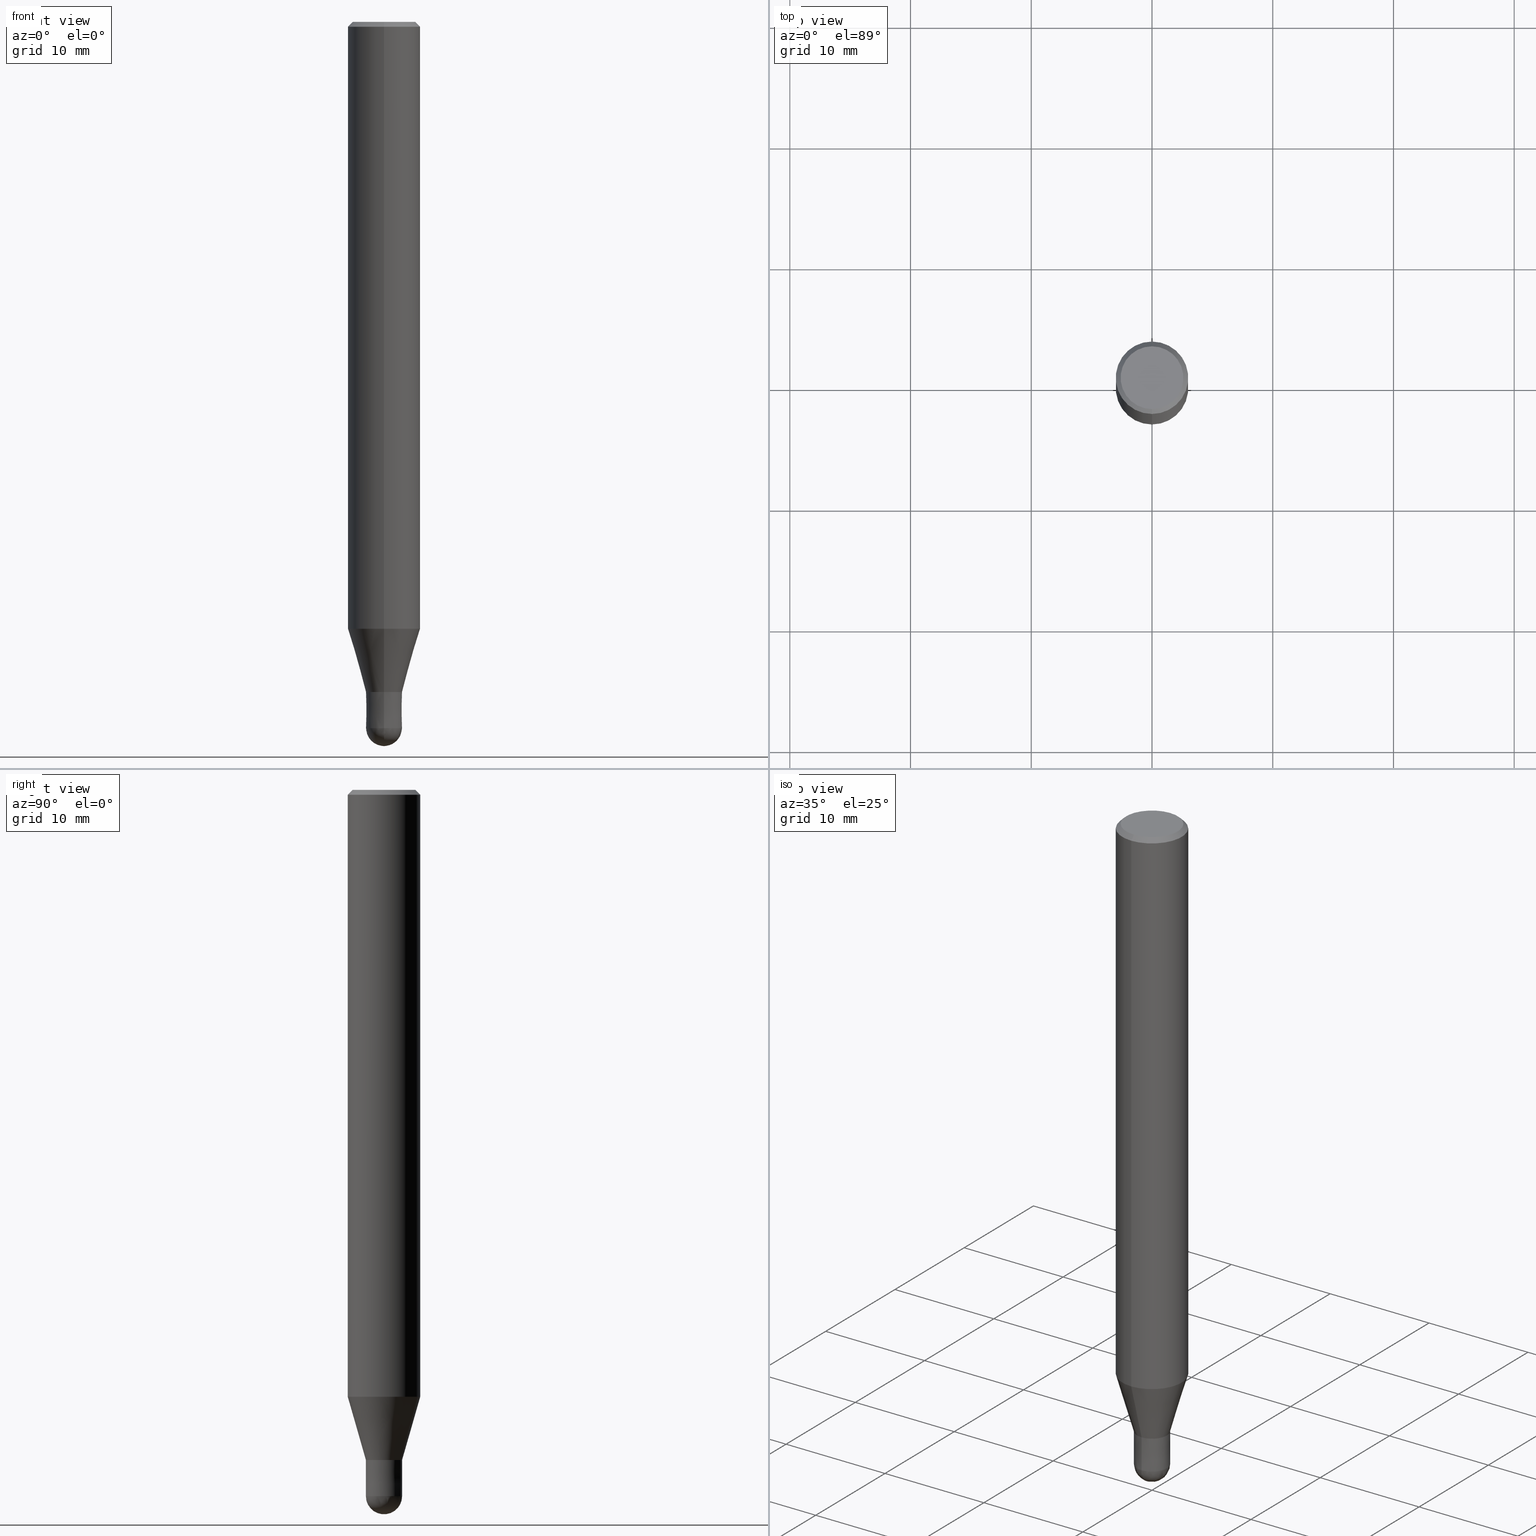
[diagram: canonical four-view strip — front | top / right | iso, engineering-drawing reading convention]
A machine part, canonical four-view strip (front | top / right | iso — engineering-drawing reading convention). The complete STEP part file that produces these views, byte-faithful:
ISO-10303-21;
HEADER;
FILE_DESCRIPTION(('no description'),'unknown implementation level');
FILE_NAME('CFB3030-0450-Huellk.stp','  ',('CIMSOURCE GmbH'),('CADClick - KiM GmbH - www.kimweb.de'),'unknown preprocess','ACIS','unknown authorization');
FILE_SCHEMA(('automotive_design'));
ENDSEC;
DATA;
#1=MECHANICAL_DESIGN_GEOMETRIC_PRESENTATION_REPRESENTATION(' ',(#14,#15,#16,#17,#18,#19,#20,#21,#22,#23,#24,#25,#26,#27,#28,#29,#30,#31,#32,#33,#34,#35,#36,#37,#38,#39,#40,#41,#42,#43,#44,#45,#46,#47,#48,#49,#50,#51,#52,#53,#54,#55,#56,#57,#58,#59,#60,#61,#62,#63,#64,#65,#66),#10);
#2=PRODUCT_DEFINITION_CONTEXT('',#67,'design');
#3=APPLICATION_PROTOCOL_DEFINITION('INTERNATIONAL STANDARD','automotive_design',1994,#67);
#4=PRODUCT_CATEGORY_RELATIONSHIP('NONE','NONE',#68,#69);
#5=SHAPE_DEFINITION_REPRESENTATION(#70,#71);
#6=PRODUCT_DEFINITION_CONTEXT('',#72,'design');
#7=APPLICATION_PROTOCOL_DEFINITION('INTERNATIONAL STANDARD','automotive_design',1994,#72);
#8=PRODUCT_CATEGORY_RELATIONSHIP('NONE','NONE',#73,#74);
#9=SHAPE_DEFINITION_REPRESENTATION(#75,#76);
#10= (GEOMETRIC_REPRESENTATION_CONTEXT(3)GLOBAL_UNCERTAINTY_ASSIGNED_CONTEXT((#79))GLOBAL_UNIT_ASSIGNED_CONTEXT((#81,#82,#83))REPRESENTATION_CONTEXT('NONE','WORKSPACE'));
#14=STYLED_ITEM('',(#85),#86);
#15=STYLED_ITEM('',(#87),#88);
#16=STYLED_ITEM('',(#89),#90);
#17=STYLED_ITEM('',(#91),#92);
#18=STYLED_ITEM('',(#93),#94);
#19=STYLED_ITEM('',(#95),#96);
#20=STYLED_ITEM('',(#97),#98);
#21=STYLED_ITEM('',(#99),#100);
#22=STYLED_ITEM('',(#101),#102);
#23=STYLED_ITEM('',(#103),#104);
#24=STYLED_ITEM('',(#105),#106);
#25=STYLED_ITEM('',(#107),#108);
#26=STYLED_ITEM('',(#109),#110);
#27=STYLED_ITEM('',(#111),#112);
#28=STYLED_ITEM('',(#113),#114);
#29=STYLED_ITEM('',(#115),#116);
#30=STYLED_ITEM('',(#117),#118);
#31=STYLED_ITEM('',(#119),#120);
#32=STYLED_ITEM('',(#121),#122);
#33=STYLED_ITEM('',(#123),#124);
#34=STYLED_ITEM('',(#125),#126);
#35=STYLED_ITEM('',(#127),#128);
#36=STYLED_ITEM('',(#129),#130);
#37=STYLED_ITEM('',(#131),#132);
#38=STYLED_ITEM('',(#133),#134);
#39=STYLED_ITEM('',(#135),#136);
#40=STYLED_ITEM('',(#137),#138);
#41=STYLED_ITEM('',(#139),#140);
#42=STYLED_ITEM('',(#141),#142);
#43=STYLED_ITEM('',(#143),#144);
#44=STYLED_ITEM('',(#145),#146);
#45=STYLED_ITEM('',(#147),#148);
#46=STYLED_ITEM('',(#149),#150);
#47=STYLED_ITEM('',(#151),#152);
#48=STYLED_ITEM('',(#153),#154);
#49=STYLED_ITEM('',(#155),#156);
#50=STYLED_ITEM('',(#157),#158);
#51=STYLED_ITEM('',(#159),#160);
#52=STYLED_ITEM('',(#161),#162);
#53=STYLED_ITEM('',(#163),#164);
#54=STYLED_ITEM('',(#165),#166);
#55=STYLED_ITEM('',(#167),#168);
#56=STYLED_ITEM('',(#169),#170);
#57=STYLED_ITEM('',(#171),#172);
#58=STYLED_ITEM('',(#173),#174);
#59=STYLED_ITEM('',(#175),#176);
#60=STYLED_ITEM('',(#177),#178);
#61=STYLED_ITEM('',(#179),#180);
#62=STYLED_ITEM('',(#181),#182);
#63=STYLED_ITEM('',(#183),#184);
#64=STYLED_ITEM('',(#185),#186);
#65=STYLED_ITEM('',(#187),#188);
#66=STYLED_ITEM('',(#189),#190);
#67=APPLICATION_CONTEXT(' ');
#68=PRODUCT_CATEGORY('part','NONE');
#69=PRODUCT_RELATED_PRODUCT_CATEGORY('detail',' ',(#191));
#70=PRODUCT_DEFINITION_SHAPE('NONE','NONE',#192);
#71=ADVANCED_BREP_SHAPE_REPRESENTATION('1',(#130,#193),#10);
#72=APPLICATION_CONTEXT(' ');
#73=PRODUCT_CATEGORY('part','NONE');
#74=PRODUCT_RELATED_PRODUCT_CATEGORY('detail',' ',(#194));
#75=PRODUCT_DEFINITION_SHAPE('NONE','NONE',#195);
#76=ADVANCED_BREP_SHAPE_REPRESENTATION('2',(#152,#196),#10);
#79=UNCERTAINTY_MEASURE_WITH_UNIT(LENGTH_MEASURE(1.0E-006),#81,'','');
#81= (CONVERSION_BASED_UNIT('MILLIMETRE',#199)LENGTH_UNIT()NAMED_UNIT(#202));
#82= (NAMED_UNIT(#204)PLANE_ANGLE_UNIT()SI_UNIT($,.RADIAN.));
#83= (NAMED_UNIT(#204)SOLID_ANGLE_UNIT()SI_UNIT($,.STERADIAN.));
#85=PRESENTATION_STYLE_ASSIGNMENT((#210));
#86=EDGE_CURVE('',#104,#176,#211,.T.);
#87=PRESENTATION_STYLE_ASSIGNMENT((#212));
#88=EDGE_CURVE('',#158,#184,#213,.T.);
#89=PRESENTATION_STYLE_ASSIGNMENT((#214));
#90=EDGE_CURVE('',#118,#128,#215,.T.);
#91=PRESENTATION_STYLE_ASSIGNMENT((#216));
#92=EDGE_CURVE('',#186,#156,#217,.T.);
#93=PRESENTATION_STYLE_ASSIGNMENT((#218));
#94=EDGE_CURVE('',#184,#118,#219,.T.);
#95=PRESENTATION_STYLE_ASSIGNMENT((#220));
#96=EDGE_CURVE('',#158,#128,#221,.T.);
#97=PRESENTATION_STYLE_ASSIGNMENT((#222));
#98=EDGE_CURVE('',#118,#184,#223,.T.);
#99=PRESENTATION_STYLE_ASSIGNMENT((#224));
#100=EDGE_CURVE('',#174,#146,#225,.T.);
#101=PRESENTATION_STYLE_ASSIGNMENT((#226));
#102=ADVANCED_FACE('',(#227),#228,.T.);
#103=PRESENTATION_STYLE_ASSIGNMENT((#229));
#104=VERTEX_POINT('',#230);
#105=PRESENTATION_STYLE_ASSIGNMENT((#231));
#106=EDGE_CURVE('',#156,#142,#232,.T.);
#107=PRESENTATION_STYLE_ASSIGNMENT((#233));
#108=EDGE_CURVE('',#142,#138,#234,.T.);
#109=PRESENTATION_STYLE_ASSIGNMENT((#235));
#110=EDGE_CURVE('',#176,#146,#236,.T.);
#111=PRESENTATION_STYLE_ASSIGNMENT((#237));
#112=ADVANCED_FACE('',(#238),#239,.T.);
#113=PRESENTATION_STYLE_ASSIGNMENT((#240));
#114=ADVANCED_FACE('',(#241),#242,.T.);
#115=PRESENTATION_STYLE_ASSIGNMENT((#243));
#116=EDGE_CURVE('',#146,#174,#244,.T.);
#117=PRESENTATION_STYLE_ASSIGNMENT((#245));
#118=VERTEX_POINT('',#246);
#119=PRESENTATION_STYLE_ASSIGNMENT((#247));
#120=EDGE_CURVE('',#128,#158,#248,.T.);
#121=PRESENTATION_STYLE_ASSIGNMENT((#249));
#122=ADVANCED_FACE('',(#250),#251,.T.);
#123=PRESENTATION_STYLE_ASSIGNMENT((#252));
#124=EDGE_CURVE('',#142,#156,#253,.T.);
#125=PRESENTATION_STYLE_ASSIGNMENT((#254));
#126=ADVANCED_FACE('',(#255),#256,.T.);
#127=PRESENTATION_STYLE_ASSIGNMENT((#257));
#128=VERTEX_POINT('',#258);
#129=PRESENTATION_STYLE_ASSIGNMENT((#259));
#130=MANIFOLD_SOLID_BREP('1',#260);
#131=PRESENTATION_STYLE_ASSIGNMENT((#261));
#132=EDGE_CURVE('',#138,#170,#262,.T.);
#133=PRESENTATION_STYLE_ASSIGNMENT((#263));
#134=VERTEX_POINT('',#264);
#135=PRESENTATION_STYLE_ASSIGNMENT((#265));
#136=ADVANCED_FACE('',(#266),#267,.T.);
#137=PRESENTATION_STYLE_ASSIGNMENT((#268));
#138=VERTEX_POINT('',#269);
#139=PRESENTATION_STYLE_ASSIGNMENT((#270));
#140=ADVANCED_FACE('',(#271),#272,.T.);
#141=PRESENTATION_STYLE_ASSIGNMENT((#273));
#142=VERTEX_POINT('',#274);
#143=PRESENTATION_STYLE_ASSIGNMENT((#275));
#144=ADVANCED_FACE('',(#276),#277,.T.);
#145=PRESENTATION_STYLE_ASSIGNMENT((#278));
#146=VERTEX_POINT('',#279);
#147=PRESENTATION_STYLE_ASSIGNMENT((#280));
#148=EDGE_CURVE('',#186,#138,#281,.T.);
#149=PRESENTATION_STYLE_ASSIGNMENT((#282));
#150=ADVANCED_FACE('',(#283,#284),#285,.T.);
#151=PRESENTATION_STYLE_ASSIGNMENT((#286));
#152=MANIFOLD_SOLID_BREP('2',#287);
#153=PRESENTATION_STYLE_ASSIGNMENT((#288));
#154=ADVANCED_FACE('',(#289),#290,.T.);
#155=PRESENTATION_STYLE_ASSIGNMENT((#291));
#156=VERTEX_POINT('',#292);
#157=PRESENTATION_STYLE_ASSIGNMENT((#293));
#158=VERTEX_POINT('',#294);
#159=PRESENTATION_STYLE_ASSIGNMENT((#295));
#160=EDGE_CURVE('',#138,#186,#296,.T.);
#161=PRESENTATION_STYLE_ASSIGNMENT((#297));
#162=EDGE_CURVE('',#134,#186,#298,.T.);
#163=PRESENTATION_STYLE_ASSIGNMENT((#299));
#164=ADVANCED_FACE('',(#300),#301,.T.);
#165=PRESENTATION_STYLE_ASSIGNMENT((#302));
#166=EDGE_CURVE('',#176,#104,#303,.T.);
#167=PRESENTATION_STYLE_ASSIGNMENT((#304));
#168=ADVANCED_FACE('',(#305),#306,.T.);
#169=PRESENTATION_STYLE_ASSIGNMENT((#307));
#170=VERTEX_POINT('',#308);
#171=PRESENTATION_STYLE_ASSIGNMENT((#309));
#172=EDGE_CURVE('',#118,#184,#310,.T.);
#173=PRESENTATION_STYLE_ASSIGNMENT((#311));
#174=VERTEX_POINT('',#312);
#175=PRESENTATION_STYLE_ASSIGNMENT((#313));
#176=VERTEX_POINT('',#314);
#177=PRESENTATION_STYLE_ASSIGNMENT((#315));
#178=ADVANCED_FACE('',(#316),#317,.T.);
#179=PRESENTATION_STYLE_ASSIGNMENT((#318));
#180=ADVANCED_FACE('',(#319),#320,.T.);
#181=PRESENTATION_STYLE_ASSIGNMENT((#321));
#182=EDGE_CURVE('',#134,#170,#322,.T.);
#183=PRESENTATION_STYLE_ASSIGNMENT((#323));
#184=VERTEX_POINT('',#324);
#185=PRESENTATION_STYLE_ASSIGNMENT((#325));
#186=VERTEX_POINT('',#326);
#187=PRESENTATION_STYLE_ASSIGNMENT((#327));
#188=EDGE_CURVE('',#170,#134,#328,.T.);
#189=PRESENTATION_STYLE_ASSIGNMENT((#329));
#190=EDGE_CURVE('',#174,#104,#330,.T.);
#191=PRODUCT('1','1','PART-1-DESC',(#331));
#192=PRODUCT_DEFINITION('NONE','NONE',#332,#2);
#193=AXIS2_PLACEMENT_3D('',#333,#334,#335);
#194=PRODUCT('2','2','PART-2-DESC',(#336));
#195=PRODUCT_DEFINITION('NONE','NONE',#337,#6);
#196=AXIS2_PLACEMENT_3D('',#338,#339,#340);
#199=LENGTH_MEASURE_WITH_UNIT(LENGTH_MEASURE(1.0),#341);
#202=DIMENSIONAL_EXPONENTS(1.0,0.0,0.0,0.0,0.0,0.0,0.0);
#204=DIMENSIONAL_EXPONENTS(0.0,0.0,0.0,0.0,0.0,0.0,0.0);
#210=CURVE_STYLE('',#342,POSITIVE_LENGTH_MEASURE(1.0E-006),#343);
#211=CIRCLE('',#344,2.99995);
#212=CURVE_STYLE('',#345,POSITIVE_LENGTH_MEASURE(1.0E-006),#346);
#213=LINE('',#347,#348);
#214=CURVE_STYLE('',#349,POSITIVE_LENGTH_MEASURE(1.0E-006),#350);
#215=LINE('',#351,#352);
#216=CURVE_STYLE('',#353,POSITIVE_LENGTH_MEASURE(1.0E-006),#354);
#217=LINE('',#355,#356);
#218=CURVE_STYLE('',#357,POSITIVE_LENGTH_MEASURE(1.0E-006),#358);
#219=CIRCLE('',#359,1.5);
#220=CURVE_STYLE('',#360,POSITIVE_LENGTH_MEASURE(1.0E-006),#361);
#221=CIRCLE('',#362,1.4999);
#222=CURVE_STYLE('',#363,POSITIVE_LENGTH_MEASURE(1.0E-006),#364);
#223=CIRCLE('',#365,1.5);
#224=CURVE_STYLE('',#366,POSITIVE_LENGTH_MEASURE(1.0E-006),#367);
#225=CIRCLE('',#368,1.49995);
#226=SURFACE_STYLE_USAGE(.BOTH.,#369);
#227=FACE_OUTER_BOUND('',#370,.T.);
#228=SPHERICAL_SURFACE('',#371,1.5);
#229=POINT_STYLE(' ',#372,POSITIVE_LENGTH_MEASURE(1.0E-006),#373);
#230=CARTESIAN_POINT('',(3.67375783114944E-016,-2.99995,-50.269));
#231=CURVE_STYLE('',#374,POSITIVE_LENGTH_MEASURE(1.0E-006),#375);
#232=CIRCLE('',#376,2.6);
#233=CURVE_STYLE('',#377,POSITIVE_LENGTH_MEASURE(1.0E-006),#378);
#234=LINE('',#379,#380);
#235=CURVE_STYLE('',#381,POSITIVE_LENGTH_MEASURE(1.0E-006),#382);
#236=LINE('',#383,#384);
#237=SURFACE_STYLE_USAGE(.BOTH.,#385);
#238=FACE_OUTER_BOUND('',#386,.T.);
#239=SPHERICAL_SURFACE('',#387,1.5);
#240=SURFACE_STYLE_USAGE(.BOTH.,#388);
#241=FACE_OUTER_BOUND('',#389,.T.);
#242=CONICAL_SURFACE('',#390,2.24995,0.279258842899557);
#243=CURVE_STYLE('',#391,POSITIVE_LENGTH_MEASURE(1.0E-006),#392);
#244=CIRCLE('',#393,1.49995);
#245=POINT_STYLE(' ',#394,POSITIVE_LENGTH_MEASURE(1.0E-006),#395);
#246=CARTESIAN_POINT('',(1.83690953073357E-016,-1.5,-58.5));
#247=CURVE_STYLE('',#396,POSITIVE_LENGTH_MEASURE(1.0E-006),#397);
#248=CIRCLE('',#398,1.4999);
#249=SURFACE_STYLE_USAGE(.BOTH.,#399);
#250=FACE_OUTER_BOUND('',#400,.T.);
#251=CONICAL_SURFACE('',#401,2.8,0.78539816339745);
#252=CURVE_STYLE('',#402,POSITIVE_LENGTH_MEASURE(1.0E-006),#403);
#253=CIRCLE('',#404,2.6);
#254=SURFACE_STYLE_USAGE(.BOTH.,#405);
#255=FACE_OUTER_BOUND('',#406,.T.);
#256=CONICAL_SURFACE('',#407,1.49995,3.3333333321058E-005);
#257=POINT_STYLE(' ',#408,POSITIVE_LENGTH_MEASURE(1.0E-006),#409);
#258=CARTESIAN_POINT('',(1.83678707009818E-016,-1.4999,-55.5));
#259=SURFACE_STYLE_USAGE(.BOTH.,#410);
#260=CLOSED_SHELL('',(#178,#136,#122,#150,#140,#168,#180,#114,#144));
#261=CURVE_STYLE('',#411,POSITIVE_LENGTH_MEASURE(1.0E-006),#412);
#262=LINE('',#413,#414);
#263=POINT_STYLE(' ',#415,POSITIVE_LENGTH_MEASURE(1.0E-006),#416);
#264=CARTESIAN_POINT('',(3.67381906146713E-016,-3.0,-50.269));
#265=SURFACE_STYLE_USAGE(.BOTH.,#417);
#266=FACE_OUTER_BOUND('',#418,.T.);
#267=CYLINDRICAL_SURFACE('',#419,3.0);
#268=POINT_STYLE(' ',#420,POSITIVE_LENGTH_MEASURE(1.0E-006),#421);
#269=CARTESIAN_POINT('',(0.0,3.0,-0.399999999999999));
#270=SURFACE_STYLE_USAGE(.BOTH.,#422);
#271=FACE_OUTER_BOUND('',#423,.T.);
#272=PLANE('',#424);
#273=POINT_STYLE(' ',#425,POSITIVE_LENGTH_MEASURE(1.0E-006),#426);
#274=CARTESIAN_POINT('',(0.0,2.6,0.0));
#275=SURFACE_STYLE_USAGE(.BOTH.,#427);
#276=FACE_OUTER_BOUND('',#428,.T.);
#277=PLANE('',#429);
#278=POINT_STYLE(' ',#430,POSITIVE_LENGTH_MEASURE(1.0E-006),#431);
#279=CARTESIAN_POINT('',(0.0,1.49995,-55.5));
#280=CURVE_STYLE('',#432,POSITIVE_LENGTH_MEASURE(1.0E-006),#433);
#281=CIRCLE('',#434,3.0);
#282=SURFACE_STYLE_USAGE(.BOTH.,#435);
#283=FACE_OUTER_BOUND('',#436,.T.);
#284=FACE_BOUND('',#437,.T.);
#285=PLANE('',#438);
#286=SURFACE_STYLE_USAGE(.BOTH.,#439);
#287=CLOSED_SHELL('',(#102,#126,#164,#154,#112));
#288=SURFACE_STYLE_USAGE(.BOTH.,#440);
#289=FACE_OUTER_BOUND('',#441,.T.);
#290=CONICAL_SURFACE('',#442,1.49995,3.3333333321058E-005);
#291=POINT_STYLE(' ',#443,POSITIVE_LENGTH_MEASURE(1.0E-006),#444);
#292=CARTESIAN_POINT('',(3.18397651993818E-016,-2.6,0.0));
#293=POINT_STYLE(' ',#445,POSITIVE_LENGTH_MEASURE(1.0E-006),#446);
#294=CARTESIAN_POINT('',(0.0,1.4999,-55.5));
#295=CURVE_STYLE('',#447,POSITIVE_LENGTH_MEASURE(1.0E-006),#448);
#296=CIRCLE('',#449,3.0);
#297=CURVE_STYLE('',#450,POSITIVE_LENGTH_MEASURE(1.0E-006),#451);
#298=LINE('',#452,#453);
#299=SURFACE_STYLE_USAGE(.BOTH.,#454);
#300=FACE_OUTER_BOUND('',#455,.T.);
#301=PLANE('',#456);
#302=CURVE_STYLE('',#457,POSITIVE_LENGTH_MEASURE(1.0E-006),#458);
#303=CIRCLE('',#459,2.99995);
#304=SURFACE_STYLE_USAGE(.BOTH.,#460);
#305=FACE_OUTER_BOUND('',#461,.T.);
#306=CONICAL_SURFACE('',#462,2.8,0.78539816339745);
#307=POINT_STYLE(' ',#463,POSITIVE_LENGTH_MEASURE(1.0E-006),#464);
#308=CARTESIAN_POINT('',(0.0,3.0,-50.269));
#309=CURVE_STYLE('',#465,POSITIVE_LENGTH_MEASURE(1.0E-006),#466);
#310=CIRCLE('',#467,1.5);
#311=POINT_STYLE(' ',#468,POSITIVE_LENGTH_MEASURE(1.0E-006),#469);
#312=CARTESIAN_POINT('',(1.83684830041587E-016,-1.49995,-55.5));
#313=POINT_STYLE(' ',#470,POSITIVE_LENGTH_MEASURE(1.0E-006),#471);
#314=CARTESIAN_POINT('',(0.0,2.99995,-50.269));
#315=SURFACE_STYLE_USAGE(.BOTH.,#472);
#316=FACE_OUTER_BOUND('',#473,.T.);
#317=CONICAL_SURFACE('',#474,2.24995,0.279258842899557);
#318=SURFACE_STYLE_USAGE(.BOTH.,#475);
#319=FACE_OUTER_BOUND('',#476,.T.);
#320=CYLINDRICAL_SURFACE('',#477,3.0);
#321=CURVE_STYLE('',#478,POSITIVE_LENGTH_MEASURE(1.0E-006),#479);
#322=CIRCLE('',#480,3.0);
#323=POINT_STYLE(' ',#481,POSITIVE_LENGTH_MEASURE(1.0E-006),#482);
#324=CARTESIAN_POINT('',(0.0,1.5,-58.5));
#325=POINT_STYLE(' ',#483,POSITIVE_LENGTH_MEASURE(1.0E-006),#484);
#326=CARTESIAN_POINT('',(3.67381906146713E-016,-3.0,-0.399999999999999));
#327=CURVE_STYLE('',#485,POSITIVE_LENGTH_MEASURE(1.0E-006),#486);
#328=CIRCLE('',#487,3.0);
#329=CURVE_STYLE('',#488,POSITIVE_LENGTH_MEASURE(1.0E-006),#489);
#330=LINE('',#490,#491);
#331=PRODUCT_CONTEXT('',#67,'mechanical');
#332=PRODUCT_DEFINITION_FORMATION_WITH_SPECIFIED_SOURCE(' ','NONE',#191,.NOT_KNOWN.);
#333=CARTESIAN_POINT('',(0.0,0.0,0.0));
#334=DIRECTION('',(0.0,0.0,1.0));
#335=DIRECTION('',(1.0,0.0,0.0));
#336=PRODUCT_CONTEXT('',#72,'mechanical');
#337=PRODUCT_DEFINITION_FORMATION_WITH_SPECIFIED_SOURCE(' ','NONE',#194,.NOT_KNOWN.);
#338=CARTESIAN_POINT('',(0.0,0.0,0.0));
#339=DIRECTION('',(0.0,0.0,1.0));
#340=DIRECTION('',(1.0,0.0,0.0));
#341= (NAMED_UNIT(#202)LENGTH_UNIT()SI_UNIT(.MILLI.,.METRE.));
#342=DRAUGHTING_PRE_DEFINED_CURVE_FONT('continuous');
#343=COLOUR_RGB('',0.498039215803146,0.498039215803146,0.498039215803146);
#344=AXIS2_PLACEMENT_3D('',#493,#494,#495);
#345=DRAUGHTING_PRE_DEFINED_CURVE_FONT('continuous');
#346=COLOUR_RGB('',0.800000011920929,0.800000011920929,0.800000011920929);
#347=CARTESIAN_POINT('',(-1.83684830041587E-016,1.49995,-57.0));
#348=VECTOR('',#496,1.0);
#349=DRAUGHTING_PRE_DEFINED_CURVE_FONT('continuous');
#350=COLOUR_RGB('',0.800000011920929,0.800000011920929,0.800000011920929);
#351=CARTESIAN_POINT('',(1.83684830041587E-016,-1.49995,-57.0));
#352=VECTOR('',#497,1.0);
#353=DRAUGHTING_PRE_DEFINED_CURVE_FONT('continuous');
#354=COLOUR_RGB('',0.498039215803146,0.498039215803146,0.498039215803146);
#355=CARTESIAN_POINT('',(3.42889779070266E-016,-2.8,-0.199999999999996));
#356=VECTOR('',#498,1.0);
#357=DRAUGHTING_PRE_DEFINED_CURVE_FONT('continuous');
#358=COLOUR_RGB('',0.800000011920929,0.800000011920929,0.800000011920929);
#359=AXIS2_PLACEMENT_3D('',#499,#500,#501);
#360=DRAUGHTING_PRE_DEFINED_CURVE_FONT('continuous');
#361=COLOUR_RGB('',0.800000011920929,0.800000011920929,0.800000011920929);
#362=AXIS2_PLACEMENT_3D('',#502,#503,#504);
#363=DRAUGHTING_PRE_DEFINED_CURVE_FONT('continuous');
#364=COLOUR_RGB('',0.800000011920929,0.800000011920929,0.800000011920929);
#365=AXIS2_PLACEMENT_3D('',#505,#506,#507);
#366=DRAUGHTING_PRE_DEFINED_CURVE_FONT('continuous');
#367=COLOUR_RGB('',0.498039215803146,0.498039215803146,0.498039215803146);
#368=AXIS2_PLACEMENT_3D('',#508,#509,#510);
#369=SURFACE_SIDE_STYLE('',(#511));
#370=EDGE_LOOP('',(#512,#513));
#371=AXIS2_PLACEMENT_3D('',#514,#515,#516);
#372=PRE_DEFINED_MARKER('');
#373=COLOUR_RGB('',0.498039215803146,0.498039215803146,0.498039215803146);
#374=DRAUGHTING_PRE_DEFINED_CURVE_FONT('continuous');
#375=COLOUR_RGB('',0.498039215803146,0.498039215803146,0.498039215803146);
#376=AXIS2_PLACEMENT_3D('',#517,#518,#519);
#377=DRAUGHTING_PRE_DEFINED_CURVE_FONT('continuous');
#378=COLOUR_RGB('',0.498039215803146,0.498039215803146,0.498039215803146);
#379=CARTESIAN_POINT('',(-3.42889779070266E-016,2.8,-0.199999999999996));
#380=VECTOR('',#520,1.0);
#381=DRAUGHTING_PRE_DEFINED_CURVE_FONT('continuous');
#382=COLOUR_RGB('',0.498039215803146,0.498039215803146,0.498039215803146);
#383=CARTESIAN_POINT('',(-2.75530306578266E-016,2.24995,-52.8845));
#384=VECTOR('',#521,1.0);
#385=SURFACE_SIDE_STYLE('',(#522));
#386=EDGE_LOOP('',(#523,#524));
#387=AXIS2_PLACEMENT_3D('',#525,#526,#527);
#388=SURFACE_SIDE_STYLE('',(#528));
#389=EDGE_LOOP('',(#529,#530,#531,#532));
#390=AXIS2_PLACEMENT_3D('',#533,#534,#535);
#391=DRAUGHTING_PRE_DEFINED_CURVE_FONT('continuous');
#392=COLOUR_RGB('',0.498039215803146,0.498039215803146,0.498039215803146);
#393=AXIS2_PLACEMENT_3D('',#536,#537,#538);
#394=PRE_DEFINED_MARKER('');
#395=COLOUR_RGB('',0.800000011920929,0.800000011920929,0.800000011920929);
#396=DRAUGHTING_PRE_DEFINED_CURVE_FONT('continuous');
#397=COLOUR_RGB('',0.800000011920929,0.800000011920929,0.800000011920929);
#398=AXIS2_PLACEMENT_3D('',#539,#540,#541);
#399=SURFACE_SIDE_STYLE('',(#542));
#400=EDGE_LOOP('',(#543,#544,#545,#546));
#401=AXIS2_PLACEMENT_3D('',#547,#548,#549);
#402=DRAUGHTING_PRE_DEFINED_CURVE_FONT('continuous');
#403=COLOUR_RGB('',0.498039215803146,0.498039215803146,0.498039215803146);
#404=AXIS2_PLACEMENT_3D('',#550,#551,#552);
#405=SURFACE_SIDE_STYLE('',(#553));
#406=EDGE_LOOP('',(#554,#555,#556,#557));
#407=AXIS2_PLACEMENT_3D('',#558,#559,#560);
#408=PRE_DEFINED_MARKER('');
#409=COLOUR_RGB('',0.800000011920929,0.800000011920929,0.800000011920929);
#410=SURFACE_SIDE_STYLE('',(#561));
#411=DRAUGHTING_PRE_DEFINED_CURVE_FONT('continuous');
#412=COLOUR_RGB('',0.498039215803146,0.498039215803146,0.498039215803146);
#413=CARTESIAN_POINT('',(-3.67381906146713E-016,3.0,-25.3345));
#414=VECTOR('',#562,1.0);
#415=PRE_DEFINED_MARKER('');
#416=COLOUR_RGB('',0.498039215803146,0.498039215803146,0.498039215803146);
#417=SURFACE_SIDE_STYLE('',(#563));
#418=EDGE_LOOP('',(#564,#565,#566,#567));
#419=AXIS2_PLACEMENT_3D('',#568,#569,#570);
#420=PRE_DEFINED_MARKER('');
#421=COLOUR_RGB('',0.498039215803146,0.498039215803146,0.498039215803146);
#422=SURFACE_SIDE_STYLE('',(#571));
#423=EDGE_LOOP('',(#572,#573));
#424=AXIS2_PLACEMENT_3D('',#574,#575,#576);
#425=PRE_DEFINED_MARKER('');
#426=COLOUR_RGB('',0.498039215803146,0.498039215803146,0.498039215803146);
#427=SURFACE_SIDE_STYLE('',(#577));
#428=EDGE_LOOP('',(#578,#579));
#429=AXIS2_PLACEMENT_3D('',#580,#581,#582);
#430=PRE_DEFINED_MARKER('');
#431=COLOUR_RGB('',0.498039215803146,0.498039215803146,0.498039215803146);
#432=DRAUGHTING_PRE_DEFINED_CURVE_FONT('continuous');
#433=COLOUR_RGB('',0.498039215803146,0.498039215803146,0.498039215803146);
#434=AXIS2_PLACEMENT_3D('',#583,#584,#585);
#435=SURFACE_SIDE_STYLE('',(#586));
#436=EDGE_LOOP('',(#587,#588));
#437=EDGE_LOOP('',(#589,#590));
#438=AXIS2_PLACEMENT_3D('',#591,#592,#593);
#439=SURFACE_SIDE_STYLE('',(#594));
#440=SURFACE_SIDE_STYLE('',(#595));
#441=EDGE_LOOP('',(#596,#597,#598,#599));
#442=AXIS2_PLACEMENT_3D('',#600,#601,#602);
#443=PRE_DEFINED_MARKER('');
#444=COLOUR_RGB('',0.498039215803146,0.498039215803146,0.498039215803146);
#445=PRE_DEFINED_MARKER('');
#446=COLOUR_RGB('',0.800000011920929,0.800000011920929,0.800000011920929);
#447=DRAUGHTING_PRE_DEFINED_CURVE_FONT('continuous');
#448=COLOUR_RGB('',0.498039215803146,0.498039215803146,0.498039215803146);
#449=AXIS2_PLACEMENT_3D('',#603,#604,#605);
#450=DRAUGHTING_PRE_DEFINED_CURVE_FONT('continuous');
#451=COLOUR_RGB('',0.498039215803146,0.498039215803146,0.498039215803146);
#452=CARTESIAN_POINT('',(3.67381906146713E-016,-3.0,-25.3345));
#453=VECTOR('',#606,1.0);
#454=SURFACE_SIDE_STYLE('',(#607));
#455=EDGE_LOOP('',(#608,#609));
#456=AXIS2_PLACEMENT_3D('',#610,#611,#612);
#457=DRAUGHTING_PRE_DEFINED_CURVE_FONT('continuous');
#458=COLOUR_RGB('',0.498039215803146,0.498039215803146,0.498039215803146);
#459=AXIS2_PLACEMENT_3D('',#613,#614,#615);
#460=SURFACE_SIDE_STYLE('',(#616));
#461=EDGE_LOOP('',(#617,#618,#619,#620));
#462=AXIS2_PLACEMENT_3D('',#621,#622,#623);
#463=PRE_DEFINED_MARKER('');
#464=COLOUR_RGB('',0.498039215803146,0.498039215803146,0.498039215803146);
#465=DRAUGHTING_PRE_DEFINED_CURVE_FONT('continuous');
#466=COLOUR_RGB('',0.800000011920929,0.800000011920929,0.800000011920929);
#467=AXIS2_PLACEMENT_3D('',#624,#625,#626);
#468=PRE_DEFINED_MARKER('');
#469=COLOUR_RGB('',0.498039215803146,0.498039215803146,0.498039215803146);
#470=PRE_DEFINED_MARKER('');
#471=COLOUR_RGB('',0.498039215803146,0.498039215803146,0.498039215803146);
#472=SURFACE_SIDE_STYLE('',(#627));
#473=EDGE_LOOP('',(#628,#629,#630,#631));
#474=AXIS2_PLACEMENT_3D('',#632,#633,#634);
#475=SURFACE_SIDE_STYLE('',(#635));
#476=EDGE_LOOP('',(#636,#637,#638,#639));
#477=AXIS2_PLACEMENT_3D('',#640,#641,#642);
#478=DRAUGHTING_PRE_DEFINED_CURVE_FONT('continuous');
#479=COLOUR_RGB('',0.498039215803146,0.498039215803146,0.498039215803146);
#480=AXIS2_PLACEMENT_3D('',#643,#644,#645);
#481=PRE_DEFINED_MARKER('');
#482=COLOUR_RGB('',0.800000011920929,0.800000011920929,0.800000011920929);
#483=PRE_DEFINED_MARKER('');
#484=COLOUR_RGB('',0.498039215803146,0.498039215803146,0.498039215803146);
#485=DRAUGHTING_PRE_DEFINED_CURVE_FONT('continuous');
#486=COLOUR_RGB('',0.498039215803146,0.498039215803146,0.498039215803146);
#487=AXIS2_PLACEMENT_3D('',#646,#647,#648);
#488=DRAUGHTING_PRE_DEFINED_CURVE_FONT('continuous');
#489=COLOUR_RGB('',0.498039215803146,0.498039215803146,0.498039215803146);
#490=CARTESIAN_POINT('',(2.75530306578266E-016,-2.24995,-52.8845));
#491=VECTOR('',#649,1.0);
#493=CARTESIAN_POINT('',(0.0,0.0,-50.269));
#494=DIRECTION('',(0.0,0.0,-1.0));
#495=DIRECTION('',(0.0,1.0,0.0));
#496=DIRECTION('',(-4.08202117714875E-021,3.33333333148852E-005,-0.999999999444445));
#497=DIRECTION('',(-4.08202117714875E-021,3.33333333148852E-005,0.999999999444445));
#498=DIRECTION('',(-8.65927457071937E-017,0.707106781186549,0.707106781186546));
#499=CARTESIAN_POINT('',(0.0,0.0,-58.5));
#500=DIRECTION('',(0.0,0.0,-1.0));
#501=DIRECTION('',(0.0,1.0,0.0));
#502=CARTESIAN_POINT('',(0.0,0.0,-55.5));
#503=DIRECTION('',(0.0,0.0,-1.0));
#504=DIRECTION('',(0.0,1.0,0.0));
#505=CARTESIAN_POINT('',(0.0,0.0,-58.5));
#506=DIRECTION('',(1.0,0.0,1.22460635382238E-016));
#507=DIRECTION('',(-1.22460635382238E-016,0.0,1.0));
#508=CARTESIAN_POINT('',(0.0,0.0,-55.5));
#509=DIRECTION('',(0.0,0.0,-1.0));
#510=DIRECTION('',(0.0,1.0,0.0));
#511=SURFACE_STYLE_FILL_AREA(#650);
#512=ORIENTED_EDGE('',*,*,#98,.F.);
#513=ORIENTED_EDGE('',*,*,#172,.T.);
#514=CARTESIAN_POINT('',(0.0,0.0,-58.5));
#515=DIRECTION('',(0.0,1.0,0.0));
#516=DIRECTION('',(0.0,0.0,-1.0));
#517=CARTESIAN_POINT('',(0.0,0.0,0.0));
#518=DIRECTION('',(0.0,0.0,-1.0));
#519=DIRECTION('',(0.0,1.0,0.0));
#520=DIRECTION('',(-8.65927457071937E-017,0.707106781186549,-0.707106781186546));
#521=DIRECTION('',(3.37554511665357E-017,-0.275643279664314,-0.961259997282682));
#522=SURFACE_STYLE_FILL_AREA(#651);
#523=ORIENTED_EDGE('',*,*,#98,.T.);
#524=ORIENTED_EDGE('',*,*,#94,.T.);
#525=CARTESIAN_POINT('',(0.0,0.0,-58.5));
#526=DIRECTION('',(0.0,1.0,0.0));
#527=DIRECTION('',(0.0,0.0,-1.0));
#528=SURFACE_STYLE_FILL_AREA(#652);
#529=ORIENTED_EDGE('',*,*,#110,.T.);
#530=ORIENTED_EDGE('',*,*,#100,.F.);
#531=ORIENTED_EDGE('',*,*,#190,.T.);
#532=ORIENTED_EDGE('',*,*,#86,.T.);
#533=CARTESIAN_POINT('',(0.0,0.0,-52.8845));
#534=DIRECTION('',(-0.0,-0.0,1.0));
#535=DIRECTION('',(0.0,1.0,0.0));
#536=CARTESIAN_POINT('',(0.0,0.0,-55.5));
#537=DIRECTION('',(0.0,0.0,-1.0));
#538=DIRECTION('',(0.0,1.0,0.0));
#539=CARTESIAN_POINT('',(0.0,0.0,-55.5));
#540=DIRECTION('',(0.0,0.0,-1.0));
#541=DIRECTION('',(0.0,1.0,0.0));
#542=SURFACE_STYLE_FILL_AREA(#653);
#543=ORIENTED_EDGE('',*,*,#108,.F.);
#544=ORIENTED_EDGE('',*,*,#124,.T.);
#545=ORIENTED_EDGE('',*,*,#92,.F.);
#546=ORIENTED_EDGE('',*,*,#160,.F.);
#547=CARTESIAN_POINT('',(0.0,0.0,-0.199999999999996));
#548=DIRECTION('',(0.0,-0.0,-1.0));
#549=DIRECTION('',(0.0,1.0,0.0));
#550=CARTESIAN_POINT('',(0.0,0.0,0.0));
#551=DIRECTION('',(0.0,0.0,-1.0));
#552=DIRECTION('',(0.0,1.0,0.0));
#553=SURFACE_STYLE_FILL_AREA(#654);
#554=ORIENTED_EDGE('',*,*,#88,.F.);
#555=ORIENTED_EDGE('',*,*,#96,.T.);
#556=ORIENTED_EDGE('',*,*,#90,.F.);
#557=ORIENTED_EDGE('',*,*,#94,.F.);
#558=CARTESIAN_POINT('',(0.0,0.0,-57.0));
#559=DIRECTION('',(0.0,-0.0,-1.0));
#560=DIRECTION('',(0.0,1.0,0.0));
#561=SURFACE_STYLE_FILL_AREA(#655);
#562=DIRECTION('',(0.0,0.0,-1.0));
#563=SURFACE_STYLE_FILL_AREA(#656);
#564=ORIENTED_EDGE('',*,*,#132,.F.);
#565=ORIENTED_EDGE('',*,*,#160,.T.);
#566=ORIENTED_EDGE('',*,*,#162,.F.);
#567=ORIENTED_EDGE('',*,*,#188,.F.);
#568=CARTESIAN_POINT('',(0.0,0.0,-25.3345));
#569=DIRECTION('',(-0.0,-0.0,1.0));
#570=DIRECTION('',(0.0,1.0,0.0));
#571=SURFACE_STYLE_FILL_AREA(#657);
#572=ORIENTED_EDGE('',*,*,#124,.F.);
#573=ORIENTED_EDGE('',*,*,#106,.F.);
#574=CARTESIAN_POINT('',(0.0,1.3,0.0));
#575=DIRECTION('',(-0.0,0.0,1.0));
#576=DIRECTION('',(0.0,-1.0,0.0));
#577=SURFACE_STYLE_FILL_AREA(#658);
#578=ORIENTED_EDGE('',*,*,#116,.T.);
#579=ORIENTED_EDGE('',*,*,#100,.T.);
#580=CARTESIAN_POINT('',(0.0,0.749975,-55.5));
#581=DIRECTION('',(0.0,0.0,-1.0));
#582=DIRECTION('',(0.0,1.0,0.0));
#583=CARTESIAN_POINT('',(0.0,0.0,-0.399999999999999));
#584=DIRECTION('',(0.0,0.0,-1.0));
#585=DIRECTION('',(0.0,1.0,0.0));
#586=SURFACE_STYLE_FILL_AREA(#659);
#587=ORIENTED_EDGE('',*,*,#188,.T.);
#588=ORIENTED_EDGE('',*,*,#182,.T.);
#589=ORIENTED_EDGE('',*,*,#166,.F.);
#590=ORIENTED_EDGE('',*,*,#86,.F.);
#591=CARTESIAN_POINT('',(0.0,1.5,-50.269));
#592=DIRECTION('',(0.0,0.0,-1.0));
#593=DIRECTION('',(0.0,1.0,0.0));
#594=SURFACE_STYLE_FILL_AREA(#660);
#595=SURFACE_STYLE_FILL_AREA(#661);
#596=ORIENTED_EDGE('',*,*,#88,.T.);
#597=ORIENTED_EDGE('',*,*,#172,.F.);
#598=ORIENTED_EDGE('',*,*,#90,.T.);
#599=ORIENTED_EDGE('',*,*,#120,.T.);
#600=CARTESIAN_POINT('',(0.0,0.0,-57.0));
#601=DIRECTION('',(0.0,-0.0,-1.0));
#602=DIRECTION('',(0.0,1.0,0.0));
#603=CARTESIAN_POINT('',(0.0,0.0,-0.399999999999999));
#604=DIRECTION('',(0.0,0.0,-1.0));
#605=DIRECTION('',(0.0,1.0,0.0));
#606=DIRECTION('',(-0.0,-0.0,1.0));
#607=SURFACE_STYLE_FILL_AREA(#662);
#608=ORIENTED_EDGE('',*,*,#96,.F.);
#609=ORIENTED_EDGE('',*,*,#120,.F.);
#610=CARTESIAN_POINT('',(0.0,0.74995,-55.5));
#611=DIRECTION('',(-0.0,0.0,1.0));
#612=DIRECTION('',(0.0,-1.0,0.0));
#613=CARTESIAN_POINT('',(0.0,0.0,-50.269));
#614=DIRECTION('',(0.0,0.0,-1.0));
#615=DIRECTION('',(0.0,1.0,0.0));
#616=SURFACE_STYLE_FILL_AREA(#663);
#617=ORIENTED_EDGE('',*,*,#108,.T.);
#618=ORIENTED_EDGE('',*,*,#148,.F.);
#619=ORIENTED_EDGE('',*,*,#92,.T.);
#620=ORIENTED_EDGE('',*,*,#106,.T.);
#621=CARTESIAN_POINT('',(0.0,0.0,-0.199999999999996));
#622=DIRECTION('',(0.0,-0.0,-1.0));
#623=DIRECTION('',(0.0,1.0,0.0));
#624=CARTESIAN_POINT('',(0.0,0.0,-58.5));
#625=DIRECTION('',(0.0,0.0,-1.0));
#626=DIRECTION('',(0.0,1.0,0.0));
#627=SURFACE_STYLE_FILL_AREA(#664);
#628=ORIENTED_EDGE('',*,*,#110,.F.);
#629=ORIENTED_EDGE('',*,*,#166,.T.);
#630=ORIENTED_EDGE('',*,*,#190,.F.);
#631=ORIENTED_EDGE('',*,*,#116,.F.);
#632=CARTESIAN_POINT('',(0.0,0.0,-52.8845));
#633=DIRECTION('',(-0.0,-0.0,1.0));
#634=DIRECTION('',(0.0,1.0,0.0));
#635=SURFACE_STYLE_FILL_AREA(#665);
#636=ORIENTED_EDGE('',*,*,#132,.T.);
#637=ORIENTED_EDGE('',*,*,#182,.F.);
#638=ORIENTED_EDGE('',*,*,#162,.T.);
#639=ORIENTED_EDGE('',*,*,#148,.T.);
#640=CARTESIAN_POINT('',(0.0,0.0,-25.3345));
#641=DIRECTION('',(-0.0,-0.0,1.0));
#642=DIRECTION('',(0.0,1.0,0.0));
#643=CARTESIAN_POINT('',(0.0,0.0,-50.269));
#644=DIRECTION('',(0.0,0.0,-1.0));
#645=DIRECTION('',(0.0,1.0,0.0));
#646=CARTESIAN_POINT('',(0.0,0.0,-50.269));
#647=DIRECTION('',(0.0,0.0,-1.0));
#648=DIRECTION('',(0.0,1.0,0.0));
#649=DIRECTION('',(3.37554511665357E-017,-0.275643279664314,0.961259997282682));
#650=FILL_AREA_STYLE('',(#666));
#651=FILL_AREA_STYLE('',(#667));
#652=FILL_AREA_STYLE('',(#668));
#653=FILL_AREA_STYLE('',(#669));
#654=FILL_AREA_STYLE('',(#670));
#655=FILL_AREA_STYLE('',(#671));
#656=FILL_AREA_STYLE('',(#672));
#657=FILL_AREA_STYLE('',(#673));
#658=FILL_AREA_STYLE('',(#674));
#659=FILL_AREA_STYLE('',(#675));
#660=FILL_AREA_STYLE('',(#676));
#661=FILL_AREA_STYLE('',(#677));
#662=FILL_AREA_STYLE('',(#678));
#663=FILL_AREA_STYLE('',(#679));
#664=FILL_AREA_STYLE('',(#680));
#665=FILL_AREA_STYLE('',(#681));
#666=FILL_AREA_STYLE_COLOUR('',#682);
#667=FILL_AREA_STYLE_COLOUR('',#683);
#668=FILL_AREA_STYLE_COLOUR('',#684);
#669=FILL_AREA_STYLE_COLOUR('',#685);
#670=FILL_AREA_STYLE_COLOUR('',#686);
#671=FILL_AREA_STYLE_COLOUR('',#687);
#672=FILL_AREA_STYLE_COLOUR('',#688);
#673=FILL_AREA_STYLE_COLOUR('',#689);
#674=FILL_AREA_STYLE_COLOUR('',#690);
#675=FILL_AREA_STYLE_COLOUR('',#691);
#676=FILL_AREA_STYLE_COLOUR('',#692);
#677=FILL_AREA_STYLE_COLOUR('',#693);
#678=FILL_AREA_STYLE_COLOUR('',#694);
#679=FILL_AREA_STYLE_COLOUR('',#695);
#680=FILL_AREA_STYLE_COLOUR('',#696);
#681=FILL_AREA_STYLE_COLOUR('',#697);
#682=COLOUR_RGB('',0.800000011920929,0.800000011920929,0.800000011920929);
#683=COLOUR_RGB('',0.800000011920929,0.800000011920929,0.800000011920929);
#684=COLOUR_RGB('',0.498039215803146,0.498039215803146,0.498039215803146);
#685=COLOUR_RGB('',0.498039215803146,0.498039215803146,0.498039215803146);
#686=COLOUR_RGB('',0.800000011920929,0.800000011920929,0.800000011920929);
#687=COLOUR_RGB('',0.498039215803146,0.498039215803146,0.498039215803146);
#688=COLOUR_RGB('',0.498039215803146,0.498039215803146,0.498039215803146);
#689=COLOUR_RGB('',0.498039215803146,0.498039215803146,0.498039215803146);
#690=COLOUR_RGB('',0.498039215803146,0.498039215803146,0.498039215803146);
#691=COLOUR_RGB('',0.498039215803146,0.498039215803146,0.498039215803146);
#692=COLOUR_RGB('',0.800000011920929,0.800000011920929,0.800000011920929);
#693=COLOUR_RGB('',0.800000011920929,0.800000011920929,0.800000011920929);
#694=COLOUR_RGB('',0.800000011920929,0.800000011920929,0.800000011920929);
#695=COLOUR_RGB('',0.498039215803146,0.498039215803146,0.498039215803146);
#696=COLOUR_RGB('',0.498039215803146,0.498039215803146,0.498039215803146);
#697=COLOUR_RGB('',0.498039215803146,0.498039215803146,0.498039215803146);
#698=AXIS2_PLACEMENT_3D('PCS',#699,#700,#701);
#699=CARTESIAN_POINT('',(0.0,0.0,0.0));
#700=DIRECTION('',(0.0,0.0,1.0));
#701=DIRECTION('',(1.0,0.0,0.0));
#702=AXIS2_PLACEMENT_3D('CIP',#703,#704,#705);
#703=CARTESIAN_POINT('',(0.0,0.0,-60.0));
#704=DIRECTION('',(0.0,0.0,1.0));
#705=DIRECTION('',(1.0,0.0,0.0));
#706=AXIS2_PLACEMENT_3D('CRP',#707,#708,#709);
#707=CARTESIAN_POINT('',(-1.5,0.0,-60.0));
#708=DIRECTION('',(0.0,0.0,1.0));
#709=DIRECTION('',(1.0,0.0,0.0));
#710=AXIS2_PLACEMENT_3D('MCS',#711,#712,#713);
#711=CARTESIAN_POINT('',(0.0,0.0,-50.269));
#712=DIRECTION('',(0.0,0.0,1.0));
#713=DIRECTION('',(1.0,0.0,0.0));
#714=CONSTRUCTIVE_GEOMETRY_REPRESENTATION_RELATIONSHIP('coordinate systems',$,#71,#715);
#715=CONSTRUCTIVE_GEOMETRY_REPRESENTATION('coordinate systems',(#698,#702,#706,#710),#10);
ENDSEC;
END-ISO-10303-21;
